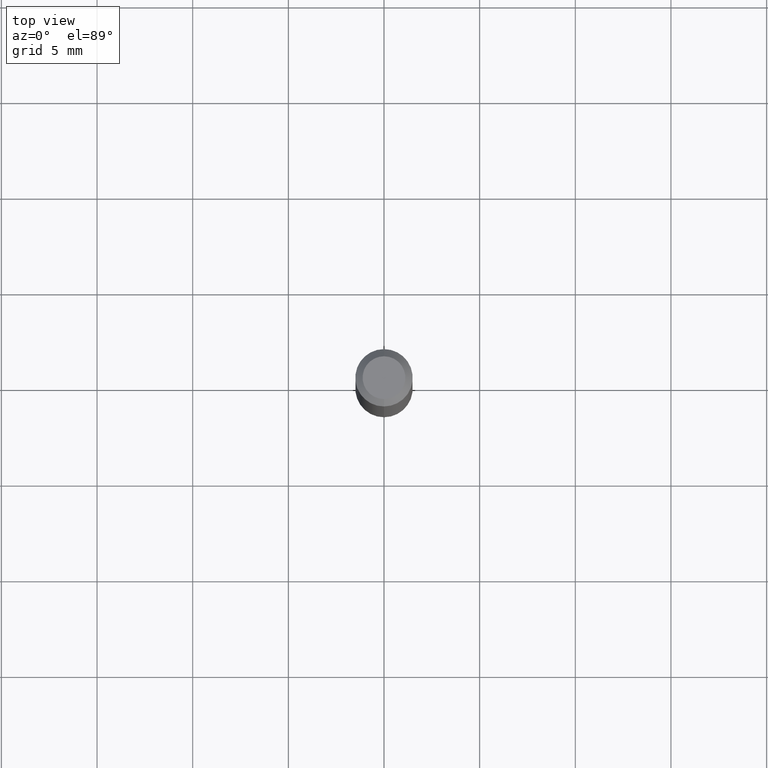
[diagram: clean part render]
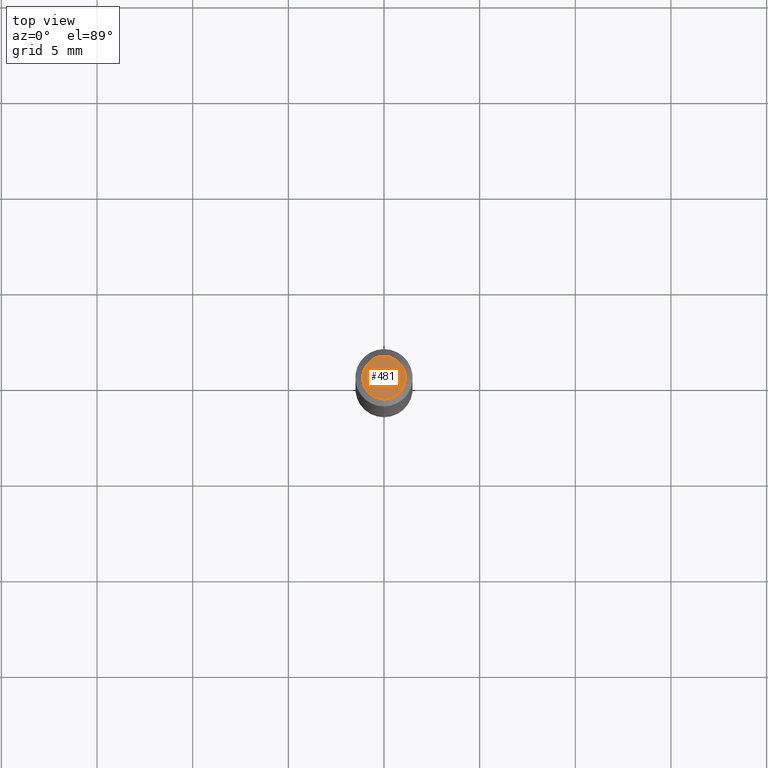
[diagram: same view with one face highlighted and labeled with its STEP entity id]
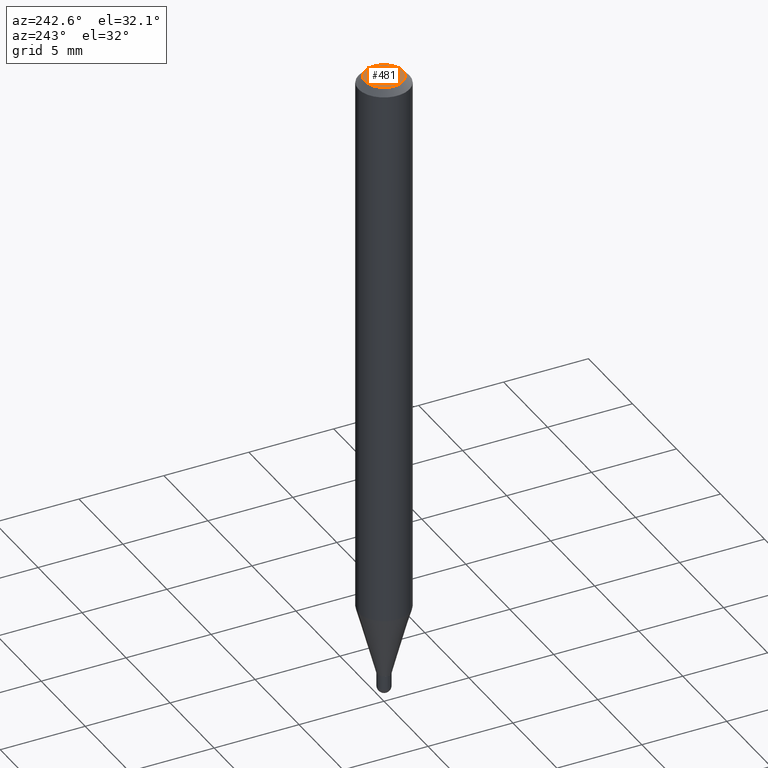
[diagram: same view with one face highlighted and labeled with its STEP entity id]
A machine part, top view. The second image highlights one B-rep face of the part: STEP entity #481.
A second angle (auxiliary view) of the same face is appended — the face is thin or edge-on in the first view.
In plain terms, the highlighted planar face has unit normal (0, -0, -1).
Its self-contained STEP definition (entity closure, byte-faithful):
#49 = DIRECTION ( 'NONE',  ( 6.982962677686265922E-15, 1.000000000000000000, -3.491515819682548515E-15 ) ) ;
#68 = ORIENTED_EDGE ( 'NONE', *, *, #341, .T. ) ;
#80 = DIRECTION ( 'NONE',  ( -6.982962677686265133E-15, -1.000000000000000000, 3.491515819682548515E-15 ) ) ;
#86 = DIRECTION ( 'NONE',  ( -2.445444728343672060E-29, 3.491515819682548515E-15, 1.000000000000000000 ) ) ;
#96 = CIRCLE ( 'NONE', #259, 0.04404999999999999888 ) ;
#164 = EDGE_CURVE ( 'NONE', #479, #416, #96, .T. ) ;
#193 = CARTESIAN_POINT ( 'NONE',  ( 1.968598619526925023E-45, -2.810692526810415636E-31, -8.050063846097556128E-17 ) ) ;
#233 = CARTESIAN_POINT ( 'NONE',  ( 1.968598619526925023E-45, -2.810692526810415636E-31, -8.050063846097556128E-17 ) ) ;
#251 = DIRECTION ( 'NONE',  ( 2.445444728343671780E-29, -3.491515819682548515E-15, -1.000000000000000000 ) ) ;
#259 = AXIS2_PLACEMENT_3D ( 'NONE', #193, #86, #465 ) ;
#278 = PLANE ( 'NONE',  #426 ) ;
#282 = CARTESIAN_POINT ( 'NONE',  ( 3.075995059520799729E-16, 0.04404999999999999888, -1.940515910875040727E-16 ) ) ;
#312 = AXIS2_PLACEMENT_3D ( 'NONE', #233, #462, #80 ) ;
#341 = EDGE_CURVE ( 'NONE', #416, #479, #358, .T. ) ;
#358 = CIRCLE ( 'NONE', #312, 0.04404999999999999888 ) ;
#385 = CARTESIAN_POINT ( 'NONE',  ( 3.599717260347271507E-16, 0.04404999999999999888, -2.343019103179918348E-16 ) ) ;
#396 = EDGE_LOOP ( 'NONE', ( #477, #68 ) ) ;
#416 = VERTEX_POINT ( 'NONE', #469 ) ;
#426 = AXIS2_PLACEMENT_3D ( 'NONE', #282, #251, #49 ) ;
#462 = DIRECTION ( 'NONE',  ( -2.445444728343672060E-29, 3.491515819682548515E-15, 1.000000000000000000 ) ) ;
#465 = DIRECTION ( 'NONE',  ( -6.982962677686265133E-15, -1.000000000000000000, 3.491515819682548515E-15 ) ) ;
#469 = CARTESIAN_POINT ( 'NONE',  ( -3.536586717851222218E-16, -0.04404999999999999888, 7.330063339604068764E-17 ) ) ;
#477 = ORIENTED_EDGE ( 'NONE', *, *, #164, .T. ) ;
#479 = VERTEX_POINT ( 'NONE', #385 ) ;
#481 = ADVANCED_FACE ( 'NONE', ( #483 ), #278, .F. ) ;
#483 = FACE_OUTER_BOUND ( 'NONE', #396, .T. ) ;